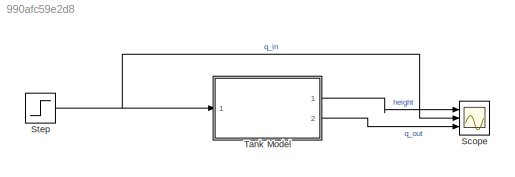
MODEL slx_990afc59e2d8
KIND model
CONFIG AbsTol = auto
CONFIG EnableMultiTasking = off
CONFIG FixedStep = 0.1
CONFIG MaxStep = auto
CONFIG MinStep = auto
CONFIG RelTol = 1e-3
CONFIG SampleTimeConstraint = Unconstrained
CONFIG SolverName = ode4
CONFIG StartTime = 0.0
CONFIG StopTime = Endtime
BLOCK [Scope] Scope
  Floating = off
  NumInputPorts = 3
  Ports = [3]
  ScopeSpecificationString = Simulink.scopes.TimeScopeBlockCfg('CurrentConfiguration', extmgr.ConfigurationSet(extmgr.Configuration('Core','General UI',true),extmgr.Configuration('Core','Source UI',true),extmgr.Configuration('Sources','WiredSimulink',true),extmgr.Configuration('Visuals','Time Domain',true,'SerializedDisplays',{struct('MinYLimReal','-62.49762','MaxYLimReal','562.47858','YLabelReal','','MinYLimMag','0.00000','M...<+2654ch>
BLOCK [Step] Step
  SampleTime = 0
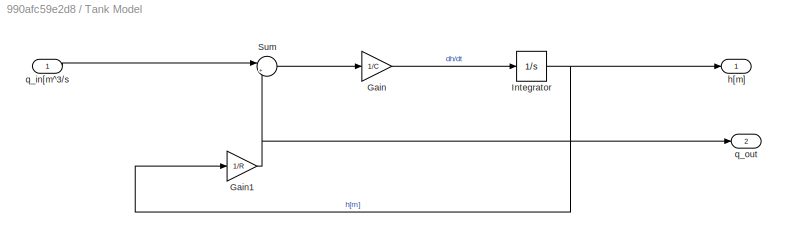
BLOCK [SubSystem] Tank Model
  Ports = [1, 2]
  RequestExecContextInheritance = off
BLOCK [Gain] Tank Model/Gain
  Gain = 1/C
BLOCK [Gain] Tank Model/Gain1
  Gain = 1/R
BLOCK [Integrator] Tank Model/Integrator
  Ports = [1, 1]
BLOCK [Sum] Tank Model/Sum
  Inputs = |+-
  Ports = [2, 1]
BLOCK [Outport] Tank Model/h[m]
BLOCK [Inport] Tank Model/q_in[m^3//s
BLOCK [Outport] Tank Model/q_out
  Port = 2
NET Step:1 -> Scope:2, Tank Model:1
NET Tank Model/Gain1:1 -> Tank Model/Sum:2, Tank Model/q_out:1
LINE Tank Model/Gain:1 -> Tank Model/Integrator:1
NET Tank Model/Integrator:1 -> Tank Model/Gain1:1, Tank Model/h[m]:1
LINE Tank Model/Sum:1 -> Tank Model/Gain:1
LINE Tank Model/q_in[m^3//s:1 -> Tank Model/Sum:1
LINE Tank Model:1 -> Scope:1
LINE Tank Model:2 -> Scope:3
note: NET lines group one-source signal fan-out (src -> all destinations, sorted); 1:1 wires keep LINE
